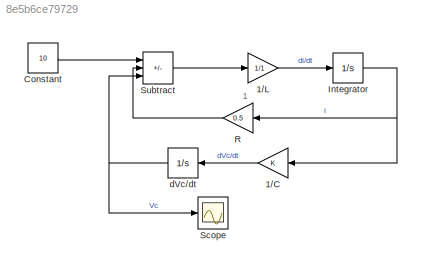
MODEL slx_8e5b6ce79729
KIND model
CONFIG AbsTol = auto
CONFIG EnableMultiTasking = off
CONFIG FixedStep = auto
CONFIG MaxStep = auto
CONFIG MinStep = auto
CONFIG RelTol = 1e-3
CONFIG SampleTimeConstraint = Unconstrained
CONFIG SolverName = VariableStepAuto
CONFIG StartTime = 0.0
CONFIG StopTime = 10.0
BLOCK [Gain] 1//C
  NameLocation = top
BLOCK [Gain] 1//L
  Gain = 1/1
BLOCK [Constant] Constant
  Value = 10
BLOCK [Integrator] Integrator
BLOCK [Gain] R
  Gain = 0.5
  NameLocation = top
BLOCK [Scope] Scope
  Floating = off
  NumInputPorts = 1
  ScopeSpecificationString = Simulink.scopes.TimeScopeBlockCfg('CurrentConfiguration', extmgr.ConfigurationSet(extmgr.Configuration('Core','General UI',true,'FigureColor',[1 1 1]),extmgr.Configuration('Core','Source UI',true),extmgr.Configuration('Sources','WiredSimulink',true),extmgr.Configuration('Visuals','Time Domain',true,'SerializedDisplays',{struct('MinYLimReal','-1.80511','MaxYLimReal','16.24602','YLabelReal','','MinY...<+1511ch>
BLOCK [Sum] Subtract
  IconShape = rectangular
  Inputs = +--
BLOCK [Integrator] dVc//dt
  NameLocation = top
ANNOTATION (root): 1
LINE 1//C:1 -> dVc//dt:1
LINE 1//L:1 -> Integrator:1
LINE Constant:1 -> Subtract:1
NET Integrator:1 -> 1//C:1, R:1
LINE R:1 -> Subtract:2
LINE Subtract:1 -> 1//L:1
NET dVc//dt:1 -> Scope:1, Subtract:3
note: NET lines group one-source signal fan-out (src -> all destinations, sorted); 1:1 wires keep LINE
